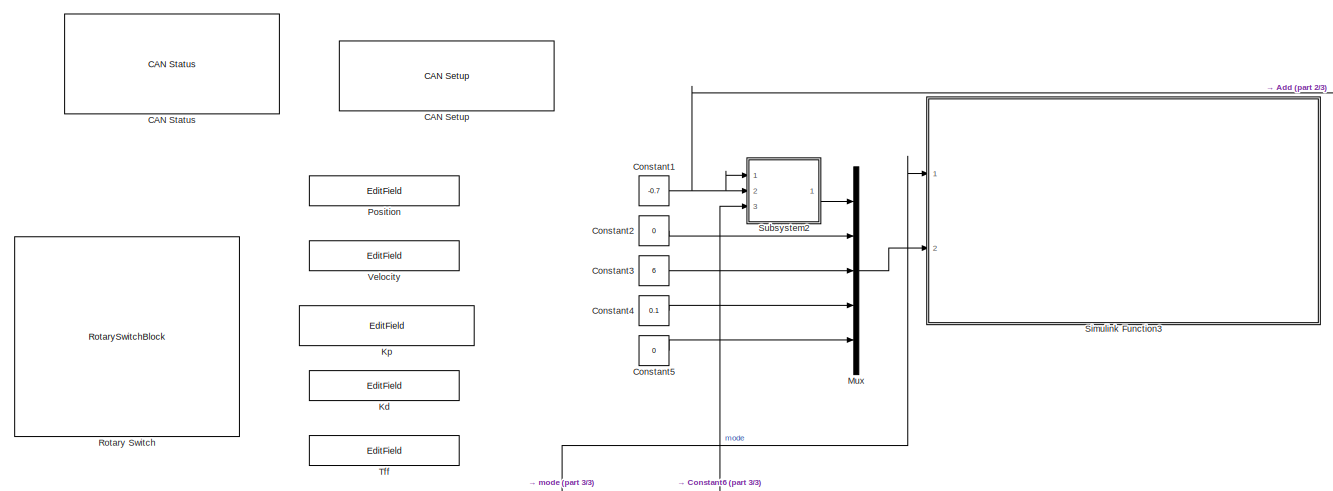
[diagram: root canvas - part 1/3, full width, top band]
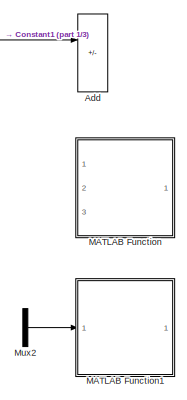
[diagram: root canvas - part 2/3, top right region]
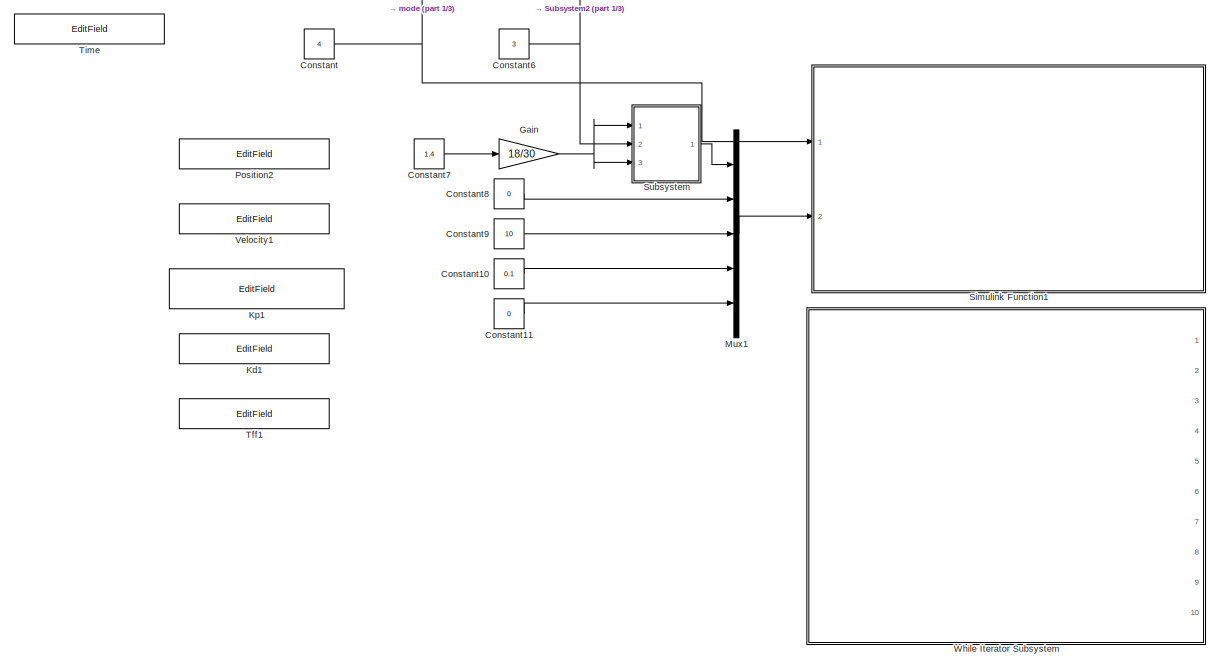
[diagram: root canvas - part 3/3, bottom center region]
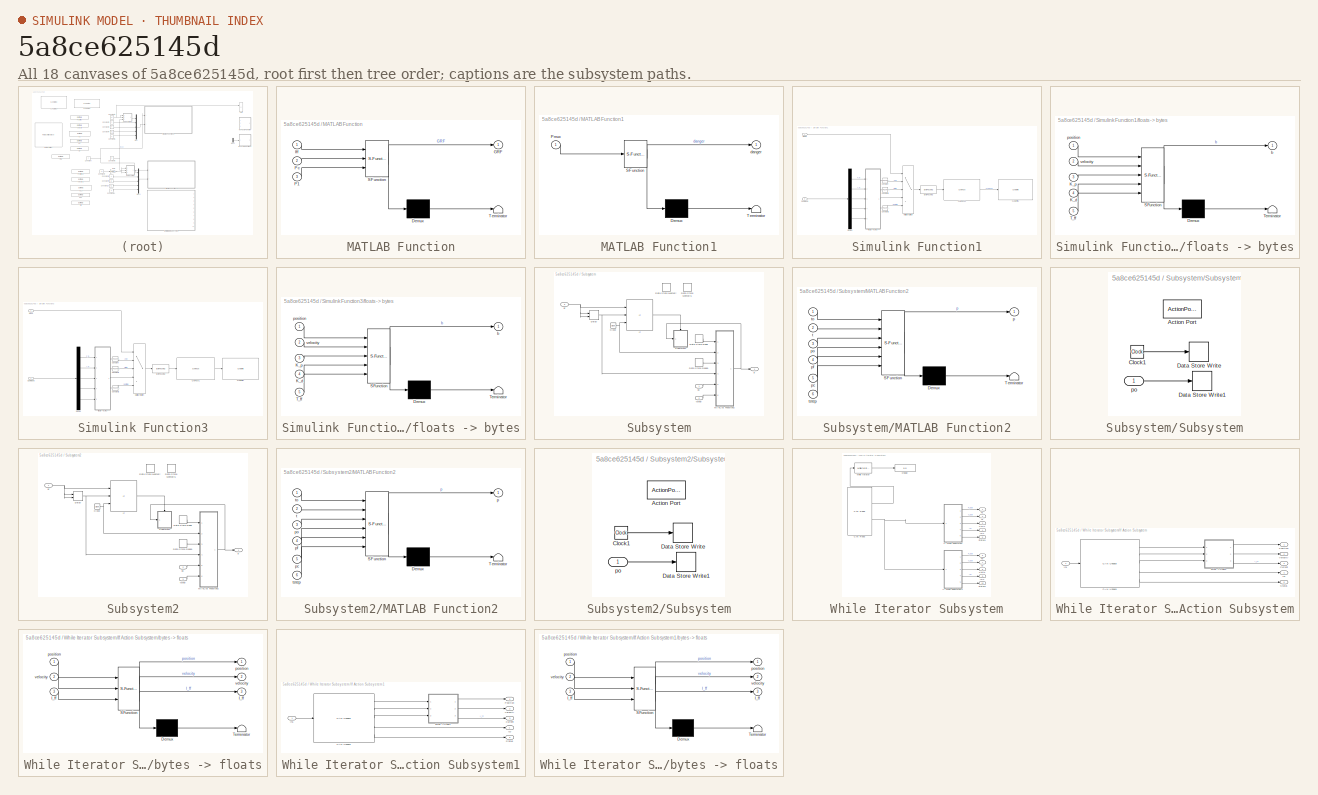
[diagram: thumbnail index - all 18 canvases of the model, root first then tree order]
MODEL slx_5a8ce625145d
KIND model
CONFIG AbsTol = auto
CONFIG EnableMultiTasking = off
CONFIG FixedStep = .1
CONFIG MaxStep = auto
CONFIG MinStep = auto
CONFIG RelTol = 1e-3
CONFIG SampleTimeConstraint = Unconstrained
CONFIG SolverName = FixedStepAuto
CONFIG StartTime = 0.0
CONFIG StopTime = 200
BLOCK [Sum] Add
  Commented = on
  IconShape = rectangular
  Inputs = -+
  Ports = [2, 1]
BLOCK [Reference] CAN Setup   REF=speedgoatlib_IO691/CAN Setup 
  Ports = []
  SourceBlock = speedgoatlib_IO691/CAN Setup
  SourceProductName = Simulink Real-Time: Speedgoat I/O Blockset
  SourceType = setup_IO691
BLOCK [Reference] CAN Status  REF=speedgoatlib_IO691/CAN Status
  Ports = []
  SourceBlock = speedgoatlib_IO691/CAN Status
  SourceProductName = Simulink Real-Time: Speedgoat I/O Blockset
  SourceType = status_IO691
  UserDataPersistent = on
BLOCK [Constant] Constant
  Value = 4
BLOCK [Constant] Constant1
  Value = -0.7
BLOCK [Constant] Constant10
  Value = 0.1
BLOCK [Constant] Constant11
  Value = 0
BLOCK [Constant] Constant2
  Value = 0
BLOCK [Constant] Constant3
  Value = 6
BLOCK [Constant] Constant4
  Value = 0.1
BLOCK [Constant] Constant5
  Value = 0
BLOCK [Constant] Constant6
  Value = 3
BLOCK [Constant] Constant7
  Value = 1.4
BLOCK [Constant] Constant8
  Value = 0
BLOCK [Constant] Constant9
  Value = 10
BLOCK [Gain] Gain
  Gain = 18/30
BLOCK [EditField] Kd
  Alignment = Center
  LabelPosition = Hide
  ShowInitialText = on
BLOCK [EditField] Kd1
  Alignment = Center
  LabelPosition = Hide
  ShowInitialText = on
BLOCK [EditField] Kp
  Alignment = Center
  LabelPosition = Hide
  ShowInitialText = on
BLOCK [EditField] Kp1
  Alignment = Center
  LabelPosition = Hide
  ShowInitialText = on
BLOCK [SubSystem] MATLAB Function
  Commented = on
  ErrorFcn = Stateflow.Translate.translate
  PermitHierarchicalResolution = ExplicitOnly
  Ports = [3, 1]
  RequestExecContextInheritance = off
  SFBlockType = MATLAB Function
  TreatAsAtomicUnit = on
BLOCK [Demux] MATLAB Function/ Demux 
  Outputs = 1
  Ports = [1, 1]
BLOCK [S-Function] MATLAB Function/ SFunction 
  EnableBusSupport = on
  FunctionName = sf_sfun
  PortCounts = [3 2]
  Ports = [3, 2]
  SFcnIsStateOwnerBlock = off
  SFunctionDeploymentMode = off
  Tag = Stateflow S-Function 4
BLOCK [Terminator] MATLAB Function/ Terminator 
BLOCK [Outport] MATLAB Function/GRF
BLOCK [Inport] MATLAB Function/Iff
BLOCK [Inport] MATLAB Function/P1
  Port = 3
BLOCK [Inport] MATLAB Function/Pc
  Port = 2
BLOCK [SubSystem] MATLAB Function1
  Commented = on
  ErrorFcn = Stateflow.Translate.translate
  PermitHierarchicalResolution = ExplicitOnly
  Ports = [1, 1]
  RequestExecContextInheritance = off
  SFBlockType = MATLAB Function
  TreatAsAtomicUnit = on
BLOCK [Demux] MATLAB Function1/ Demux 
  Outputs = 1
  Ports = [1, 1]
BLOCK [S-Function] MATLAB Function1/ SFunction 
  EnableBusSupport = on
  FunctionName = sf_sfun
  PortCounts = [1 2]
  Ports = [1, 2]
  SFcnIsStateOwnerBlock = off
  SFunctionDeploymentMode = off
  Tag = Stateflow S-Function 6
BLOCK [Terminator] MATLAB Function1/ Terminator 
BLOCK [Inport] MATLAB Function1/Pmux
BLOCK [Outport] MATLAB Function1/danger
BLOCK [Mux] Mux
  DisplayOption = bar
  Inputs = 5
  Ports = [5, 1]
BLOCK [Mux] Mux1
  DisplayOption = bar
  Inputs = 5
  Ports = [5, 1]
BLOCK [Mux] Mux2
  Commented = on
  DisplayOption = bar
  Inputs = 2
  Ports = [2, 1]
BLOCK [EditField] Position
  Alignment = Center
  LabelPosition = Hide
  ShowInitialText = on
BLOCK [EditField] Position2
  Alignment = Center
  LabelPosition = Hide
  ShowInitialText = on
BLOCK [RotarySwitchBlock] Rotary Switch
BLOCK [SubSystem] Simulink Function1
  Ports = [2]
  RequestExecContextInheritance = off
  TreatAsAtomicUnit = on
BLOCK [Reference] Simulink Function1/Byte Packing  REF=slrealtimeutilitieslib/Byte Packing
  Ports = [1, 1]
  SourceBlock = slrealtimeutilitieslib/Byte Packing
  SourceProductBaseCode = XP
  SourceType = slrealtimebytepacking
BLOCK [Reference] Simulink Function1/CAN Pack1  REF=canmsglib/CAN Pack
  Ports = [1, 1]
  SourceBlock = canmsglib/CAN Pack
  SourceProductBaseCode = ME,XP,VN
  SourceType = CAN Pack
BLOCK [Reference] Simulink Function1/CAN Write1  REF=speedgoatlib_IO691/CAN Write
  Ports = [1]
  SourceBlock = speedgoatlib_IO691/CAN Write
  SourceProductName = Simulink Real-Time: Speedgoat I/O Blockset
  SourceType = write_IO691
BLOCK [Inport] Simulink Function1/Command
  Port = 2
BLOCK [Constant] Simulink Function1/Constant
  Value = [0xFF, 0xFF, 0xFF, 0xFF, 0xFF, 0xFF, 0xFF, 0xFE]
BLOCK [Constant] Simulink Function1/Constant1
  Value = [0xFF, 0xFF, 0xFF, 0xFF, 0xFF, 0xFF, 0xFF, 0xFC]
BLOCK [Constant] Simulink Function1/Constant2
  Value = [0xFF, 0xFF, 0xFF, 0xFF, 0xFF, 0xFF, 0xFF, 0xFD]
BLOCK [Demux] Simulink Function1/Demux
  Outputs = 5
  Ports = [1, 5]
BLOCK [Inport] Simulink Function1/Mode
BLOCK [MultiPortSwitch] Simulink Function1/Multiport Switch
  InputSameDT = off
  Inputs = 4
  Ports = [5, 1]
  SaturateOnIntegerOverflow = off
BLOCK [SubSystem] Simulink Function1/floats -> bytes
  ErrorFcn = Stateflow.Translate.translate
  PermitHierarchicalResolution = ExplicitOnly
  Ports = [5, 1]
  RequestExecContextInheritance = off
  SFBlockType = MATLAB Function
  TreatAsAtomicUnit = on
BLOCK [Demux] Simulink Function1/floats -> bytes/ Demux 
  Outputs = 1
  Ports = [1, 1]
BLOCK [S-Function] Simulink Function1/floats -> bytes/ SFunction 
  EnableBusSupport = on
  FunctionName = sf_sfun
  PortCounts = [5 2]
  Ports = [5, 2]
  SFcnIsStateOwnerBlock = off
  SFunctionDeploymentMode = off
  Tag = Stateflow S-Function 3
BLOCK [Terminator] Simulink Function1/floats -> bytes/ Terminator 
BLOCK [Inport] Simulink Function1/floats -> bytes/K_d
  Port = 4
BLOCK [Inport] Simulink Function1/floats -> bytes/K_p
  Port = 3
BLOCK [Inport] Simulink Function1/floats -> bytes/T_ff
  Port = 5
BLOCK [Outport] Simulink Function1/floats -> bytes/b
BLOCK [Inport] Simulink Function1/floats -> bytes/position
BLOCK [Inport] Simulink Function1/floats -> bytes/velocity
  Port = 2
BLOCK [SubSystem] Simulink Function3
  Ports = [2]
  RequestExecContextInheritance = off
  TreatAsAtomicUnit = on
BLOCK [Reference] Simulink Function3/Byte Packing  REF=slrealtimeutilitieslib/Byte Packing
  Ports = [1, 1]
  SourceBlock = slrealtimeutilitieslib/Byte Packing
  SourceProductBaseCode = XP
  SourceType = slrealtimebytepacking
BLOCK [Reference] Simulink Function3/CAN Pack1  REF=canmsglib/CAN Pack
  Ports = [1, 1]
  SourceBlock = canmsglib/CAN Pack
  SourceProductBaseCode = ME,XP,VN
  SourceType = CAN Pack
BLOCK [Reference] Simulink Function3/CAN Write1  REF=speedgoatlib_IO691/CAN Write
  Ports = [1]
  SourceBlock = speedgoatlib_IO691/CAN Write
  SourceProductName = Simulink Real-Time: Speedgoat I/O Blockset
  SourceType = write_IO691
BLOCK [Inport] Simulink Function3/Command
  Port = 2
BLOCK [Constant] Simulink Function3/Constant
  Value = [0xFF, 0xFF, 0xFF, 0xFF, 0xFF, 0xFF, 0xFF, 0xFE]
BLOCK [Constant] Simulink Function3/Constant1
  Value = [0xFF, 0xFF, 0xFF, 0xFF, 0xFF, 0xFF, 0xFF, 0xFC]
BLOCK [Constant] Simulink Function3/Constant2
  Value = [0xFF, 0xFF, 0xFF, 0xFF, 0xFF, 0xFF, 0xFF, 0xFD]
BLOCK [Demux] Simulink Function3/Demux
  Outputs = 5
  Ports = [1, 5]
BLOCK [Inport] Simulink Function3/Mode
BLOCK [MultiPortSwitch] Simulink Function3/Multiport Switch
  InputSameDT = off
  Inputs = 4
  Ports = [5, 1]
  SaturateOnIntegerOverflow = off
BLOCK [SubSystem] Simulink Function3/floats -> bytes
  ErrorFcn = Stateflow.Translate.translate
  PermitHierarchicalResolution = ExplicitOnly
  Ports = [5, 1]
  RequestExecContextInheritance = off
  SFBlockType = MATLAB Function
  TreatAsAtomicUnit = on
BLOCK [Demux] Simulink Function3/floats -> bytes/ Demux 
  Outputs = 1
  Ports = [1, 1]
BLOCK [S-Function] Simulink Function3/floats -> bytes/ SFunction 
  EnableBusSupport = on
  FunctionName = sf_sfun
  PortCounts = [5 2]
  Ports = [5, 2]
  SFcnIsStateOwnerBlock = off
  SFunctionDeploymentMode = off
  Tag = Stateflow S-Function 5
BLOCK [Terminator] Simulink Function3/floats -> bytes/ Terminator 
BLOCK [Inport] Simulink Function3/floats -> bytes/K_d
  Port = 4
BLOCK [Inport] Simulink Function3/floats -> bytes/K_p
  Port = 3
BLOCK [Inport] Simulink Function3/floats -> bytes/T_ff
  Port = 5
BLOCK [Outport] Simulink Function3/floats -> bytes/b
BLOCK [Inport] Simulink Function3/floats -> bytes/position
BLOCK [Inport] Simulink Function3/floats -> bytes/velocity
  Port = 2
BLOCK [SubSystem] Subsystem
  Ports = [3, 1]
  RequestExecContextInheritance = off
BLOCK [Clock] Subsystem/Clock
BLOCK [DataStoreMemory] Subsystem/Data Store Memory
  DataStoreName = to
  ReadBeforeWriteMsg = warning
  ShowAdditionalParam = off
  WriteAfterReadMsg = warning
  WriteAfterWriteMsg = warning
BLOCK [DataStoreMemory] Subsystem/Data Store Memory1
  DataStoreName = po
  ReadBeforeWriteMsg = warning
  ShowAdditionalParam = off
  WriteAfterReadMsg = warning
  WriteAfterWriteMsg = warning
BLOCK [DataStoreRead] Subsystem/Data Store Read
  DataStoreName = to
  IndexOptions = Index vector (dialog)
  Indices = 1
  OutputSizes = 1
  Ports = [0, 1]
BLOCK [DataStoreRead] Subsystem/Data Store Read1
  DataStoreName = po
  IndexOptions = Index vector (dialog)
  Indices = 1
  OutputSizes = 1
  Ports = [0, 1]
BLOCK [Delay] Subsystem/Delay
  DelayLength = 1
  InitialConditionSource = Input port
  InputPortMap = u0,p4
  Ports = [2, 1]
BLOCK [If] Subsystem/If
  IfExpression = u1 ~= u2 | u3<.1
  NumInputs = 3
  Ports = [3, 1]
  ShowElse = off
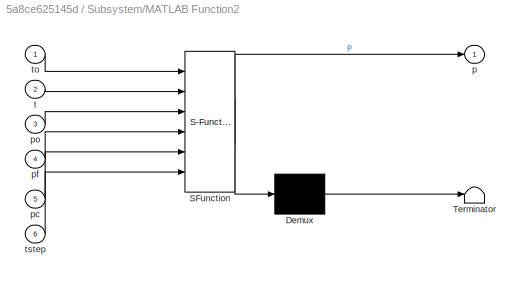
BLOCK [SubSystem] Subsystem/MATLAB Function2
  ErrorFcn = Stateflow.Translate.translate
  PermitHierarchicalResolution = ExplicitOnly
  Ports = [6, 1]
  RequestExecContextInheritance = off
  SFBlockType = MATLAB Function
  TreatAsAtomicUnit = on
BLOCK [Demux] Subsystem/MATLAB Function2/ Demux 
  Outputs = 1
  Ports = [1, 1]
BLOCK [S-Function] Subsystem/MATLAB Function2/ SFunction 
  EnableBusSupport = on
  FunctionName = sf_sfun
  PortCounts = [6 2]
  Ports = [6, 2]
  SFcnIsStateOwnerBlock = off
  SFunctionDeploymentMode = off
  Tag = Stateflow S-Function 9
BLOCK [Terminator] Subsystem/MATLAB Function2/ Terminator 
BLOCK [Outport] Subsystem/MATLAB Function2/p
BLOCK [Inport] Subsystem/MATLAB Function2/pc
  Port = 5
BLOCK [Inport] Subsystem/MATLAB Function2/pf
  Port = 4
BLOCK [Inport] Subsystem/MATLAB Function2/po
  Port = 3
BLOCK [Inport] Subsystem/MATLAB Function2/t
  Port = 2
BLOCK [Inport] Subsystem/MATLAB Function2/to
BLOCK [Inport] Subsystem/MATLAB Function2/tstep
  Port = 6
BLOCK [SubSystem] Subsystem/Subsystem
  Ports = [1, 0, 0, 0, 0, 0, 0, 1]
  RequestExecContextInheritance = off
BLOCK [ActionPort] Subsystem/Subsystem/Action Port
  ActionPortLabel = if(u1 ~= u2 | u3<.1)
BLOCK [Clock] Subsystem/Subsystem/Clock1
BLOCK [DataStoreWrite] Subsystem/Subsystem/Data Store Write
  DataStoreName = to
  IndexOptions = Index vector (dialog)
  Indices = 1
  OutputSizes = 1
  Ports = [1]
BLOCK [DataStoreWrite] Subsystem/Subsystem/Data Store Write1
  DataStoreName = po
  IndexOptions = Index vector (dialog)
  Indices = 1
  OutputSizes = 1
  Ports = [1]
BLOCK [Inport] Subsystem/Subsystem/po
BLOCK [Outport] Subsystem/p
BLOCK [Inport] Subsystem/pc
BLOCK [Inport] Subsystem/pf
  Port = 3
BLOCK [Inport] Subsystem/tstep
  Port = 2
BLOCK [SubSystem] Subsystem2
  Ports = [3, 1]
  RequestExecContextInheritance = off
BLOCK [Clock] Subsystem2/Clock
BLOCK [DataStoreMemory] Subsystem2/Data Store Memory
  DataStoreName = to
  ReadBeforeWriteMsg = warning
  ShowAdditionalParam = off
  WriteAfterReadMsg = warning
  WriteAfterWriteMsg = warning
BLOCK [DataStoreMemory] Subsystem2/Data Store Memory1
  DataStoreName = po
  ReadBeforeWriteMsg = warning
  ShowAdditionalParam = off
  WriteAfterReadMsg = warning
  WriteAfterWriteMsg = warning
BLOCK [DataStoreRead] Subsystem2/Data Store Read
  DataStoreName = to
  IndexOptions = Index vector (dialog)
  Indices = 1
  OutputSizes = 1
  Ports = [0, 1]
BLOCK [DataStoreRead] Subsystem2/Data Store Read1
  DataStoreName = po
  IndexOptions = Index vector (dialog)
  Indices = 1
  OutputSizes = 1
  Ports = [0, 1]
BLOCK [Delay] Subsystem2/Delay
  DelayLength = 1
  InitialConditionSource = Input port
  InputPortMap = u0,p4
  Ports = [2, 1]
BLOCK [If] Subsystem2/If
  IfExpression = u1 ~= u2 | u3<.1
  NumInputs = 3
  Ports = [3, 1]
  ShowElse = off
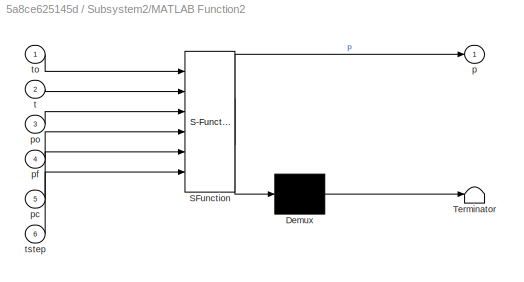
BLOCK [SubSystem] Subsystem2/MATLAB Function2
  ErrorFcn = Stateflow.Translate.translate
  PermitHierarchicalResolution = ExplicitOnly
  Ports = [6, 1]
  RequestExecContextInheritance = off
  SFBlockType = MATLAB Function
  TreatAsAtomicUnit = on
BLOCK [Demux] Subsystem2/MATLAB Function2/ Demux 
  Outputs = 1
  Ports = [1, 1]
BLOCK [S-Function] Subsystem2/MATLAB Function2/ SFunction 
  EnableBusSupport = on
  FunctionName = sf_sfun
  PortCounts = [6 2]
  Ports = [6, 2]
  SFcnIsStateOwnerBlock = off
  SFunctionDeploymentMode = off
  Tag = Stateflow S-Function 7
BLOCK [Terminator] Subsystem2/MATLAB Function2/ Terminator 
BLOCK [Outport] Subsystem2/MATLAB Function2/p
BLOCK [Inport] Subsystem2/MATLAB Function2/pc
  Port = 5
BLOCK [Inport] Subsystem2/MATLAB Function2/pf
  Port = 4
BLOCK [Inport] Subsystem2/MATLAB Function2/po
  Port = 3
BLOCK [Inport] Subsystem2/MATLAB Function2/t
  Port = 2
BLOCK [Inport] Subsystem2/MATLAB Function2/to
BLOCK [Inport] Subsystem2/MATLAB Function2/tstep
  Port = 6
BLOCK [SubSystem] Subsystem2/Subsystem
  Ports = [1, 0, 0, 0, 0, 0, 0, 1]
  RequestExecContextInheritance = off
BLOCK [ActionPort] Subsystem2/Subsystem/Action Port
  ActionPortLabel = if(u1 ~= u2 | u3<.1)
BLOCK [Clock] Subsystem2/Subsystem/Clock1
BLOCK [DataStoreWrite] Subsystem2/Subsystem/Data Store Write
  DataStoreName = to
  IndexOptions = Index vector (dialog)
  Indices = 1
  OutputSizes = 1
  Ports = [1]
BLOCK [DataStoreWrite] Subsystem2/Subsystem/Data Store Write1
  DataStoreName = po
  IndexOptions = Index vector (dialog)
  Indices = 1
  OutputSizes = 1
  Ports = [1]
BLOCK [Inport] Subsystem2/Subsystem/po
BLOCK [Outport] Subsystem2/p
BLOCK [Inport] Subsystem2/pc
  Port = 2
BLOCK [Inport] Subsystem2/pf
BLOCK [Inport] Subsystem2/tstep
  Port = 3
BLOCK [EditField] Tff
  Alignment = Center
  LabelPosition = Hide
  ShowInitialText = on
BLOCK [EditField] Tff1
  Alignment = Center
  LabelPosition = Hide
  ShowInitialText = on
BLOCK [EditField] Time
  Alignment = Center
  LabelPosition = Hide
  ShowInitialText = on
BLOCK [EditField] Velocity
  Alignment = Center
  LabelPosition = Hide
  ShowInitialText = on
BLOCK [EditField] Velocity1
  Alignment = Center
  LabelPosition = Hide
  ShowInitialText = on
BLOCK [SubSystem] While Iterator Subsystem
  Ports = [0, 10]
  RequestExecContextInheritance = off
  TreatAsAtomicUnit = on
BLOCK [Reference] While Iterator Subsystem/CAN Read  REF=speedgoatlib_IO691/CAN Read
  Ports = [0, 2]
  SourceBlock = speedgoatlib_IO691/CAN Read
  SourceProductName = Simulink Real-Time: Speedgoat I/O Blockset
  SourceType = read_IO691
BLOCK [Outport] While Iterator Subsystem/Curr1
  Port = 3
BLOCK [Outport] While Iterator Subsystem/Curr2
  Port = 8
BLOCK [Display] While Iterator Subsystem/Display
  Decimation = 1
  Ports = [1]
BLOCK [Outport] While Iterator Subsystem/ID1
  Port = 4
BLOCK [Outport] While Iterator Subsystem/ID2
  Port = 9
BLOCK [SubSystem] While Iterator Subsystem/If Action Subsystem
  Ports = [1, 5]
  RequestExecContextInheritance = off
  TreatAsAtomicUnit = on
BLOCK [Reference] While Iterator Subsystem/If Action Subsystem/CAN Unpack  REF=canmsglib/CAN Unpack
  Ports = [1, 5]
  SourceBlock = canmsglib/CAN Unpack
  SourceProductBaseCode = ME,XP,VN
  SourceType = CAN Unpack
BLOCK [Outport] While Iterator Subsystem/If Action Subsystem/Current
  Port = 3
BLOCK [Outport] While Iterator Subsystem/If Action Subsystem/ID
  Port = 4
BLOCK [Inport] While Iterator Subsystem/If Action Subsystem/In1
BLOCK [Outport] While Iterator Subsystem/If Action Subsystem/Position
BLOCK [Outport] While Iterator Subsystem/If Action Subsystem/Status
  Port = 5
BLOCK [Outport] While Iterator Subsystem/If Action Subsystem/Velocity
  Port = 2
BLOCK [SubSystem] While Iterator Subsystem/If Action Subsystem/bytes -> floats
  ErrorFcn = Stateflow.Translate.translate
  PermitHierarchicalResolution = ExplicitOnly
  Ports = [3, 3]
  RequestExecContextInheritance = off
  SFBlockType = MATLAB Function
  TreatAsAtomicUnit = on
BLOCK [Demux] While Iterator Subsystem/If Action Subsystem/bytes -> floats/ Demux 
  Outputs = 1
  Ports = [1, 1]
BLOCK [S-Function] While Iterator Subsystem/If Action Subsystem/bytes -> floats/ SFunction 
  EnableBusSupport = on
  FunctionName = sf_sfun
  PortCounts = [3 4]
  Ports = [3, 4]
  SFcnIsStateOwnerBlock = off
  SFunctionDeploymentMode = off
  Tag = Stateflow S-Function 2
BLOCK [Terminator] While Iterator Subsystem/If Action Subsystem/bytes -> floats/ Terminator 
BLOCK [Outport] While Iterator Subsystem/If Action Subsystem/bytes -> floats/I_ff
  Port = 3
BLOCK [Inport] While Iterator Subsystem/If Action Subsystem/bytes -> floats/I_ff 
  Port = 3
BLOCK [Outport] While Iterator Subsystem/If Action Subsystem/bytes -> floats/position
BLOCK [Inport] While Iterator Subsystem/If Action Subsystem/bytes -> floats/position 
BLOCK [Outport] While Iterator Subsystem/If Action Subsystem/bytes -> floats/velocity
  Port = 2
BLOCK [Inport] While Iterator Subsystem/If Action Subsystem/bytes -> floats/velocity 
  Port = 2
BLOCK [SubSystem] While Iterator Subsystem/If Action Subsystem1
  Ports = [1, 5]
  RequestExecContextInheritance = off
  TreatAsAtomicUnit = on
BLOCK [Reference] While Iterator Subsystem/If Action Subsystem1/CAN Unpack  REF=canmsglib/CAN Unpack
  Ports = [1, 5]
  SourceBlock = canmsglib/CAN Unpack
  SourceProductBaseCode = ME,XP,VN
  SourceType = CAN Unpack
BLOCK [Outport] While Iterator Subsystem/If Action Subsystem1/Current
  Port = 3
BLOCK [Outport] While Iterator Subsystem/If Action Subsystem1/ID
  Port = 4
BLOCK [Inport] While Iterator Subsystem/If Action Subsystem1/In1
BLOCK [Outport] While Iterator Subsystem/If Action Subsystem1/Position
BLOCK [Outport] While Iterator Subsystem/If Action Subsystem1/Status
  Port = 5
BLOCK [Outport] While Iterator Subsystem/If Action Subsystem1/Velocity
  Port = 2
BLOCK [SubSystem] While Iterator Subsystem/If Action Subsystem1/bytes -> floats
  ErrorFcn = Stateflow.Translate.translate
  PermitHierarchicalResolution = ExplicitOnly
  Ports = [3, 3]
  RequestExecContextInheritance = off
  SFBlockType = MATLAB Function
  TreatAsAtomicUnit = on
BLOCK [Demux] While Iterator Subsystem/If Action Subsystem1/bytes -> floats/ Demux 
  Outputs = 1
  Ports = [1, 1]
BLOCK [S-Function] While Iterator Subsystem/If Action Subsystem1/bytes -> floats/ SFunction 
  EnableBusSupport = on
  FunctionName = sf_sfun
  PortCounts = [3 4]
  Ports = [3, 4]
  SFcnIsStateOwnerBlock = off
  SFunctionDeploymentMode = off
  Tag = Stateflow S-Function 1
BLOCK [Terminator] While Iterator Subsystem/If Action Subsystem1/bytes -> floats/ Terminator 
BLOCK [Outport] While Iterator Subsystem/If Action Subsystem1/bytes -> floats/I_ff
  Port = 3
BLOCK [Inport] While Iterator Subsystem/If Action Subsystem1/bytes -> floats/I_ff 
  Port = 3
BLOCK [Outport] While Iterator Subsystem/If Action Subsystem1/bytes -> floats/position
BLOCK [Inport] While Iterator Subsystem/If Action Subsystem1/bytes -> floats/position 
BLOCK [Outport] While Iterator Subsystem/If Action Subsystem1/bytes -> floats/velocity
  Port = 2
BLOCK [Inport] While Iterator Subsystem/If Action Subsystem1/bytes -> floats/velocity 
  Port = 2
BLOCK [Outport] While Iterator Subsystem/P1
BLOCK [Outport] While Iterator Subsystem/P3
  Port = 6
BLOCK [Outport] While Iterator Subsystem/Status1
  Port = 5
BLOCK [Outport] While Iterator Subsystem/Status2
  Port = 10
BLOCK [Outport] While Iterator Subsystem/V1
  Port = 2
BLOCK [Outport] While Iterator Subsystem/V2
  Port = 7
BLOCK [WhileIterator] While Iterator Subsystem/While Iterator
  MaxIters = -1
  Ports = [1, 1]
  ResetStates = reset
  ShowIterationPort = on
  WhileBlockType = do-while
LINE Constant10:1 -> Mux1:4
LINE Constant11:1 -> Mux1:5
NET Constant1:1 -> Add:1, Subsystem2:1, Subsystem2:2
LINE Constant2:1 -> Mux:2
LINE Constant3:1 -> Mux:3
LINE Constant4:1 -> Mux:4
LINE Constant5:1 -> Mux:5
NET Constant6:1 -> Subsystem2:3, Subsystem:2
LINE Constant7:1 -> Gain:1
LINE Constant8:1 -> Mux1:2
LINE Constant9:1 -> Mux1:3
NET Constant:1 -> Simulink Function1:1, Simulink Function3:1
NET Gain:1 -> Subsystem:1, Subsystem:3
LINE Mux1:1 -> Simulink Function1:2
LINE Mux2:1 -> MATLAB Function1:1
LINE Mux:1 -> Simulink Function3:2
LINE Simulink Function1/Byte Packing:1 -> Simulink Function1/CAN Pack1:1
LINE Simulink Function1/CAN Pack1:1 -> Simulink Function1/CAN Write1:1
LINE Simulink Function1/Command:1 -> Simulink Function1/Demux:1
LINE Simulink Function1/Constant1:1 -> Simulink Function1/Multiport Switch:3
LINE Simulink Function1/Constant2:1 -> Simulink Function1/Multiport Switch:5
LINE Simulink Function1/Constant:1 -> Simulink Function1/Multiport Switch:2
LINE Simulink Function1/Demux:1 -> Simulink Function1/floats -> bytes:1
LINE Simulink Function1/Demux:2 -> Simulink Function1/floats -> bytes:2
LINE Simulink Function1/Demux:3 -> Simulink Function1/floats -> bytes:3
LINE Simulink Function1/Demux:4 -> Simulink Function1/floats -> bytes:4
LINE Simulink Function1/Demux:5 -> Simulink Function1/floats -> bytes:5
LINE Simulink Function1/Mode:1 -> Simulink Function1/Multiport Switch:1
LINE Simulink Function1/Multiport Switch:1 -> Simulink Function1/Byte Packing:1
LINE Simulink Function1/floats -> bytes:1 -> Simulink Function1/Multiport Switch:4
LINE Simulink Function3/Byte Packing:1 -> Simulink Function3/CAN Pack1:1
LINE Simulink Function3/CAN Pack1:1 -> Simulink Function3/CAN Write1:1
LINE Simulink Function3/Command:1 -> Simulink Function3/Demux:1
LINE Simulink Function3/Constant1:1 -> Simulink Function3/Multiport Switch:3
LINE Simulink Function3/Constant2:1 -> Simulink Function3/Multiport Switch:5
LINE Simulink Function3/Constant:1 -> Simulink Function3/Multiport Switch:2
LINE Simulink Function3/Demux:1 -> Simulink Function3/floats -> bytes:1
LINE Simulink Function3/Demux:2 -> Simulink Function3/floats -> bytes:2
LINE Simulink Function3/Demux:3 -> Simulink Function3/floats -> bytes:3
LINE Simulink Function3/Demux:4 -> Simulink Function3/floats -> bytes:4
LINE Simulink Function3/Demux:5 -> Simulink Function3/floats -> bytes:5
LINE Simulink Function3/Mode:1 -> Simulink Function3/Multiport Switch:1
LINE Simulink Function3/Multiport Switch:1 -> Simulink Function3/Byte Packing:1
LINE Simulink Function3/floats -> bytes:1 -> Simulink Function3/Multiport Switch:4
NET Subsystem/Clock:1 -> Subsystem/If:3, Subsystem/MATLAB Function2:2
LINE Subsystem/Data Store Read1:1 -> Subsystem/MATLAB Function2:3
LINE Subsystem/Data Store Read:1 -> Subsystem/MATLAB Function2:1
NET Subsystem/Delay:1 -> Subsystem/If:2, Subsystem/MATLAB Function2:4
LINE Subsystem/If:1 -> Subsystem/Subsystem:ifaction
NET Subsystem/MATLAB Function2:1 -> Subsystem/Subsystem:1, Subsystem/p:1
LINE Subsystem/Subsystem/Clock1:1 -> Subsystem/Subsystem/Data Store Write:1
LINE Subsystem/Subsystem/po:1 -> Subsystem/Subsystem/Data Store Write1:1
LINE Subsystem/pc:1 -> Subsystem/MATLAB Function2:5
NET Subsystem/pf:1 -> Subsystem/Delay:1, Subsystem/Delay:2, Subsystem/If:1
LINE Subsystem/tstep:1 -> Subsystem/MATLAB Function2:6
NET Subsystem2/Clock:1 -> Subsystem2/If:3, Subsystem2/MATLAB Function2:2
LINE Subsystem2/Data Store Read1:1 -> Subsystem2/MATLAB Function2:3
LINE Subsystem2/Data Store Read:1 -> Subsystem2/MATLAB Function2:1
NET Subsystem2/Delay:1 -> Subsystem2/If:2, Subsystem2/MATLAB Function2:4
LINE Subsystem2/If:1 -> Subsystem2/Subsystem:ifaction
NET Subsystem2/MATLAB Function2:1 -> Subsystem2/Subsystem:1, Subsystem2/p:1
LINE Subsystem2/Subsystem/Clock1:1 -> Subsystem2/Subsystem/Data Store Write:1
LINE Subsystem2/Subsystem/po:1 -> Subsystem2/Subsystem/Data Store Write1:1
LINE Subsystem2/pc:1 -> Subsystem2/MATLAB Function2:5
NET Subsystem2/pf:1 -> Subsystem2/Delay:1, Subsystem2/Delay:2, Subsystem2/If:1
LINE Subsystem2/tstep:1 -> Subsystem2/MATLAB Function2:6
LINE Subsystem2:1 -> Mux:1
LINE Subsystem:1 -> Mux1:1
LINE While Iterator Subsystem/CAN Read:1 -> While Iterator Subsystem/While Iterator:1
NET While Iterator Subsystem/CAN Read:2 -> While Iterator Subsystem/If Action Subsystem1:1, While Iterator Subsystem/If Action Subsystem:1
LINE While Iterator Subsystem/If Action Subsystem/CAN Unpack:1 -> While Iterator Subsystem/If Action Subsystem/bytes -> floats:1
LINE While Iterator Subsystem/If Action Subsystem/CAN Unpack:2 -> While Iterator Subsystem/If Action Subsystem/bytes -> floats:2
LINE While Iterator Subsystem/If Action Subsystem/CAN Unpack:3 -> While Iterator Subsystem/If Action Subsystem/bytes -> floats:3
LINE While Iterator Subsystem/If Action Subsystem/CAN Unpack:4 -> While Iterator Subsystem/If Action Subsystem/ID:1
LINE While Iterator Subsystem/If Action Subsystem/CAN Unpack:5 -> While Iterator Subsystem/If Action Subsystem/Status:1
LINE While Iterator Subsystem/If Action Subsystem/In1:1 -> While Iterator Subsystem/If Action Subsystem/CAN Unpack:1
LINE While Iterator Subsystem/If Action Subsystem/bytes -> floats:1 -> While Iterator Subsystem/If Action Subsystem/Position:1
LINE While Iterator Subsystem/If Action Subsystem/bytes -> floats:2 -> While Iterator Subsystem/If Action Subsystem/Velocity:1
LINE While Iterator Subsystem/If Action Subsystem/bytes -> floats:3 -> While Iterator Subsystem/If Action Subsystem/Current:1
LINE While Iterator Subsystem/If Action Subsystem1/CAN Unpack:1 -> While Iterator Subsystem/If Action Subsystem1/bytes -> floats:1
LINE While Iterator Subsystem/If Action Subsystem1/CAN Unpack:2 -> While Iterator Subsystem/If Action Subsystem1/bytes -> floats:2
LINE While Iterator Subsystem/If Action Subsystem1/CAN Unpack:3 -> While Iterator Subsystem/If Action Subsystem1/bytes -> floats:3
LINE While Iterator Subsystem/If Action Subsystem1/CAN Unpack:4 -> While Iterator Subsystem/If Action Subsystem1/ID:1
LINE While Iterator Subsystem/If Action Subsystem1/CAN Unpack:5 -> While Iterator Subsystem/If Action Subsystem1/Status:1
LINE While Iterator Subsystem/If Action Subsystem1/In1:1 -> While Iterator Subsystem/If Action Subsystem1/CAN Unpack:1
LINE While Iterator Subsystem/If Action Subsystem1/bytes -> floats:1 -> While Iterator Subsystem/If Action Subsystem1/Position:1
LINE While Iterator Subsystem/If Action Subsystem1/bytes -> floats:2 -> While Iterator Subsystem/If Action Subsystem1/Velocity:1
LINE While Iterator Subsystem/If Action Subsystem1/bytes -> floats:3 -> While Iterator Subsystem/If Action Subsystem1/Current:1
LINE While Iterator Subsystem/If Action Subsystem1:1 -> While Iterator Subsystem/P3:1
LINE While Iterator Subsystem/If Action Subsystem1:2 -> While Iterator Subsystem/V2:1
LINE While Iterator Subsystem/If Action Subsystem1:3 -> While Iterator Subsystem/Curr2:1
LINE While Iterator Subsystem/If Action Subsystem1:4 -> While Iterator Subsystem/ID2:1
LINE While Iterator Subsystem/If Action Subsystem1:5 -> While Iterator Subsystem/Status2:1
LINE While Iterator Subsystem/If Action Subsystem:1 -> While Iterator Subsystem/P1:1
LINE While Iterator Subsystem/If Action Subsystem:2 -> While Iterator Subsystem/V1:1
LINE While Iterator Subsystem/If Action Subsystem:3 -> While Iterator Subsystem/Curr1:1
LINE While Iterator Subsystem/If Action Subsystem:4 -> While Iterator Subsystem/ID1:1
LINE While Iterator Subsystem/If Action Subsystem:5 -> While Iterator Subsystem/Status1:1
LINE While Iterator Subsystem/While Iterator:1 -> While Iterator Subsystem/Display:1
note: NET lines group one-source signal fan-out (src -> all destinations, sorted); 1:1 wires keep LINE
CHART While Iterator
Subsystem/If Action
Subsystem1/bytes -> floats states=1 transitions=1
  STATE_LABEL 'eML_blk_kernel()'
  STATE_LABEL 'SCRIPT:\nfunction [position, velocity, I_ff] = fcn(position, velocity, I_ff)\n\nP_MIN  =-95.5;  % [rad]\nP_MAX  = 95.5;  % [rad]\nV_MIN  =-45;    % [rad/s]\nV_MAX  = 45;    % [rad/s]\nI_MIN  =-40;    % []\nI_MAX  = 40;    % []\n\nposition = position*(P_MAX  - P_MIN)/65535+ P_MIN;\nvelocity = velocity*(V_MAX  - V_MIN)/4095 + V_MIN;\nI_ff     = I_ff*(I_MAX  - I_MIN)/4095 + I_MIN;'
CHART While Iterator
Subsystem/If Action
Subsystem/bytes -> floats states=1 transitions=1
  STATE_LABEL 'eML_blk_kernel()'
  STATE_LABEL 'SCRIPT:\nfunction [position, velocity, I_ff] = fcn(position, velocity, I_ff)\n\nP_MIN  =-95.5;  % [rad]\nP_MAX  = 95.5;  % [rad]\nV_MIN  =-45;    % [rad/s]\nV_MAX  = 45;    % [rad/s]\nI_MIN  =-40;    % []\nI_MAX  = 40;    % []\n\nposition = position*(P_MAX  - P_MIN)/65535+ P_MIN;\nvelocity = velocity*(V_MAX  - V_MIN)/4095 + V_MIN;\nI_ff     = I_ff*(I_MAX  - I_MIN)/4095 + I_MIN;'
CHART Simulink Function1/floats -> bytes states=1 transitions=1
  STATE_LABEL 'eML_blk_kernel()'
  STATE_LABEL 'SCRIPT:\nfunction b = fcn(position, velocity, K_p, K_d, T_ff)\n\nP_MIN  =-95.5;  % [rad]\nP_MAX  = 95.5;  % [rad]\nV_MIN  =-45;    % [rad/s] 30 to 45\nV_MAX  = 45;    % [rad/s]\nKP_MIN = 0;     % [Nm/rad]\nKP_MAX = 500;   % [Nm/rad]\nKD_MIN = 0;     % [Nm*s/rad\nKD_MAX = 5;     % [Nm*s/rad\nT_MIN  =-18;    % [Nm]\nT_MAX  = 18;    % [Nm]\n\nposition = floor((max(min(position,P_MAX) ,P_MIN)  - P_MIN )*65535/(P_MA...<+891ch>'
CHART MATLAB Function states=1 transitions=1
  STATE_LABEL 'eML_blk_kernel()'
  STATE_LABEL 'SCRIPT:\nfunction GRF = isGRF(Iff, Pc,P1)\n    GRF = 0;\n    threshhold = 2.25;\n    delP = Pc - P1;\n    \n    if((P1<0 && threshhold<Iff)|| (P1>0 && -threshhold>Iff))\n        GRF = 1;\n    end\n\n'
CHART Simulink Function3/floats -> bytes states=1 transitions=1
  STATE_LABEL 'eML_blk_kernel()'
  STATE_LABEL 'SCRIPT:\nfunction b = fcn(position, velocity, K_p, K_d, T_ff)\n\nP_MIN  =-95.5;  % [rad]\nP_MAX  = 95.5;  % [rad]\nV_MIN  =-45;    % [rad/s] 30 to 45\nV_MAX  = 45;    % [rad/s]\nKP_MIN = 0;     % [Nm/rad]\nKP_MAX = 500;   % [Nm/rad]\nKD_MIN = 0;     % [Nm*s/rad\nKD_MAX = 5;     % [Nm*s/rad\nT_MIN  =-18;    % [Nm]\nT_MAX  = 18;    % [Nm]\n\nposition = floor((max(min(position,P_MAX) ,P_MIN)  - P_MIN )*65535/(P_MA...<+891ch>'
CHART MATLAB Function1 states=1 transitions=1
  STATE_LABEL 'eML_blk_kernel()'
  STATE_LABEL 'SCRIPT:\nfunction danger = isDanger(Pmux)\n    % Pmux position matrix radians\n    %       [p(ID1),p(ID2),p(ID3),p(IDN)]\n    \n    p1Max = .5; \n    p1Min = -.5;\n    p2Max = .5;\n    p2Min = -.5;\n    \n    P1 = Pmux(1:2:end);\n    P2 = Pmux(2:2:end);\n    \n    \n    danger = 0;\n    if((0<sum(P1>p1Max + P1<p1Min)) || (0<sum(P2>p2Max + P2<p2Min)))\n        danger = 1;\n    end\n\n'
CHART Subsystem2/MATLAB Function2 states=1 transitions=1
  STATE_LABEL 'eML_blk_kernel()'
  STATE_LABEL 'SCRIPT:\nfunction p = ramp(to,t,po,pf,pc, tstep)\n    slope = (pf - po)/tstep;\n    p = po + slope*(t-to);\n    if((p > pf&& slope>0) || (p < pf && slope<0))\n        p = pf;\n    end\n    if(t==0)\n        p = pc;\n    end\n'
CHART Subsystem/MATLAB Function2 states=1 transitions=1
  STATE_LABEL 'eML_blk_kernel()'
  STATE_LABEL 'SCRIPT:\nfunction p = ramp(to,t,po,pf,pc, tstep)\n    slope = (pf - po)/tstep;\n    p = po + slope*(t-to);\n    if((p > pf&& slope>0) || (p < pf && slope<0))\n        p = pf;\n    end\n    if(t==0)\n        p = pc;\n    end\n'
CHART  states=0 transitions=0
CHART  states=0 transitions=0
CHART  states=0 transitions=0
CHART  states=0 transitions=0
CHART  states=0 transitions=0
CHART  states=0 transitions=0
CHART  states=0 transitions=0
CHART  states=0 transitions=0
